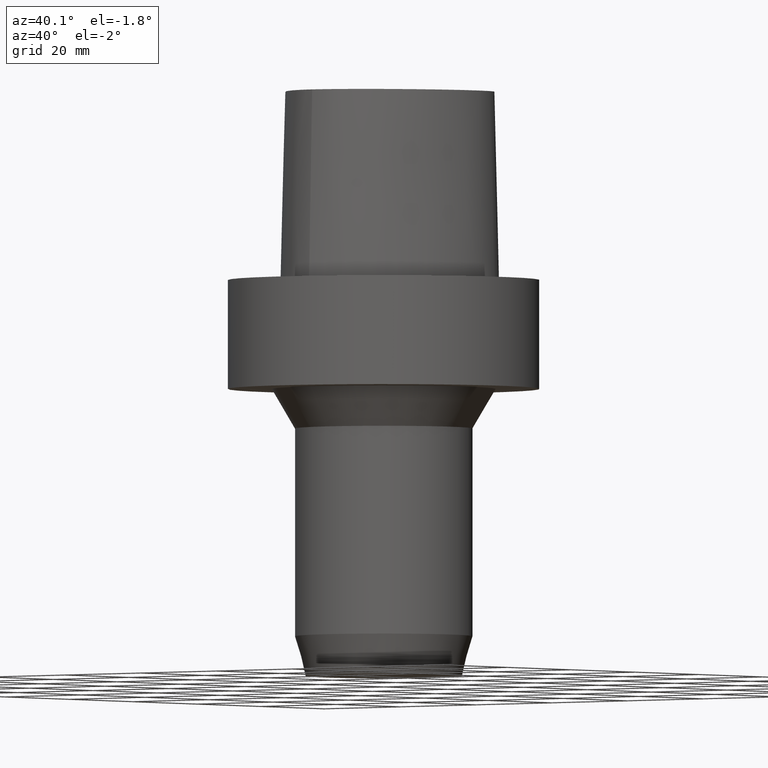
[diagram: clean part render]
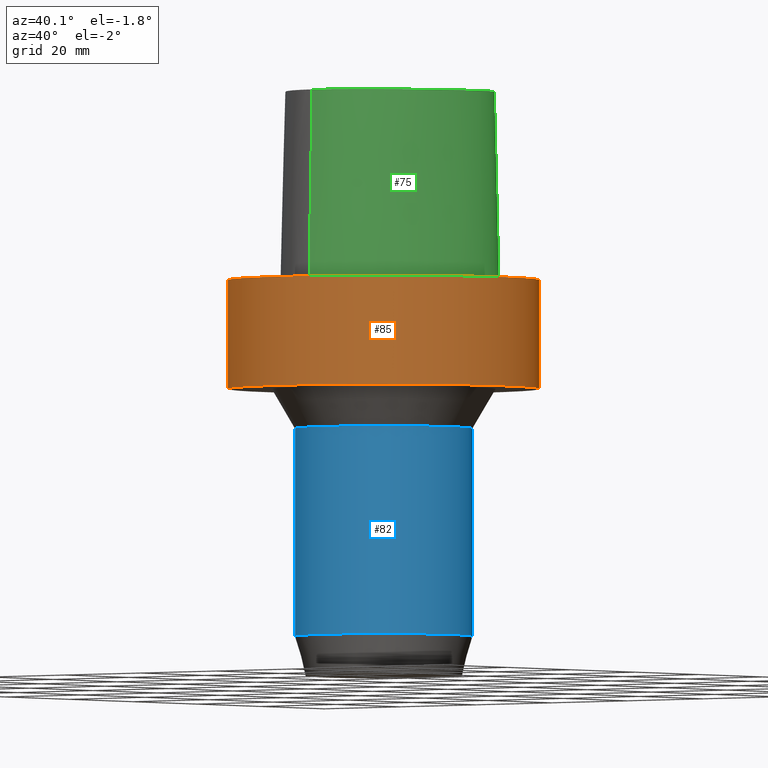
[diagram: same view with three faces highlighted in distinct colors, each labeled with its STEP entity id]
A machine part, auxiliary view with three faces highlighted in distinct colors.
Their STEP definitions:

[orange] entity #85 — the highlighted cylindrical surface (bore or boss wall) has radius 31.4925 mm, axis along (0, 0, -1).
#85=ADVANCED_FACE('',(#112,#113),#114,.T.);
#112=FACE_BOUND('',#278,.T.);
#113=FACE_BOUND('',#279,.T.);
#114=CYLINDRICAL_SURFACE('',#280,31.4925);
#278=EDGE_LOOP('',(#331));
#279=EDGE_LOOP('',(#332));
#280=AXIS2_PLACEMENT_3D('',#333,#334,#335);
#331=ORIENTED_EDGE('',*,*,#344,.F.);
#332=ORIENTED_EDGE('',*,*,#349,.T.);
#333=CARTESIAN_POINT('',(6.73555739531044E-016,1.34711147906209E-015,-11.0));
#334=DIRECTION('',(6.12323399573677E-017,1.22464679914735E-016,-1.0));
#335=DIRECTION('',(-1.23259516440783E-032,1.0,1.22464679914735E-016));
#344=EDGE_CURVE('',#363,#363,#364,.T.);
#349=EDGE_CURVE('',#373,#373,#374,.T.);
#363=VERTEX_POINT('',#454);
#364=CIRCLE('',#455,31.4925);
#373=VERTEX_POINT('',#464);
#374=CIRCLE('',#465,31.4925);
#454=CARTESIAN_POINT('',(-3.88175032151136E-031,31.4925,3.8567189322148E-015));
#455=AXIS2_PLACEMENT_3D('',#472,#473,#474);
#464=CARTESIAN_POINT('',(1.34711147906209E-015,31.4925,-22.0));
#465=AXIS2_PLACEMENT_3D('',#487,#488,#489);
#472=CARTESIAN_POINT('',(0.0,0.0,0.0));
#473=DIRECTION('',(-6.12323399573677E-017,-1.22464679914735E-016,1.0));
#474=DIRECTION('',(-1.23259516440783E-032,1.0,1.22464679914735E-016));
#487=CARTESIAN_POINT('',(1.34711147906209E-015,2.69422295812418E-015,-22.0));
#488=DIRECTION('',(-6.12323399573677E-017,-1.22464679914735E-016,1.0));
#489=DIRECTION('',(-1.23259516440783E-032,1.0,1.22464679914735E-016));

[blue] entity #82 — the highlighted cylindrical surface (bore or boss wall) has radius 18 mm, axis along (0, 0, -1).
#82=ADVANCED_FACE('',(#103,#104),#105,.T.);
#103=FACE_BOUND('',#269,.T.);
#104=FACE_BOUND('',#270,.T.);
#105=CYLINDRICAL_SURFACE('',#271,18.0);
#269=EDGE_LOOP('',(#316));
#270=EDGE_LOOP('',(#317));
#271=AXIS2_PLACEMENT_3D('',#318,#319,#320);
#316=ORIENTED_EDGE('',*,*,#347,.F.);
#317=ORIENTED_EDGE('',*,*,#346,.T.);
#318=CARTESIAN_POINT('',(3.12284933764275E-015,6.24569867528551E-015,-50.9999999970114));
#319=DIRECTION('',(6.12323399573677E-017,1.22464679914735E-016,-1.0));
#320=DIRECTION('',(-1.23259516440783E-032,1.0,1.22464679914735E-016));
#346=EDGE_CURVE('',#367,#367,#368,.T.);
#347=EDGE_CURVE('',#369,#369,#370,.T.);
#367=VERTEX_POINT('',#458);
#368=CIRCLE('',#459,18.0);
#369=VERTEX_POINT('',#460);
#370=CIRCLE('',#461,18.0);
#458=CARTESIAN_POINT('',(4.40872847632497E-015,18.0,-71.9999999901114));
#459=AXIS2_PLACEMENT_3D('',#478,#479,#480);
#460=CARTESIAN_POINT('',(1.83697019896054E-015,18.0,-30.0000000039115));
#461=AXIS2_PLACEMENT_3D('',#481,#482,#483);
#478=CARTESIAN_POINT('',(4.40872847632497E-015,8.81745695264994E-015,-71.9999999901114));
#479=DIRECTION('',(-6.12323399573677E-017,-1.22464679914735E-016,1.0));
#480=DIRECTION('',(-1.23259516440783E-032,1.0,1.22464679914735E-016));
#481=CARTESIAN_POINT('',(1.83697019896054E-015,3.67394039792108E-015,-30.0000000039115));
#482=DIRECTION('',(-6.12323399573677E-017,-1.22464679914735E-016,1.0));
#483=DIRECTION('',(-1.23259516440783E-032,1.0,1.22464679914735E-016));

[green] entity #75 — the highlighted face is a freeform B-spline surface patch.
#75=ADVANCED_FACE('',(#87),#88,.T.);
#87=FACE_OUTER_BOUND('',#115,.T.);
#88=B_SPLINE_SURFACE_WITH_KNOTS('',3,3,((#116,#117,#118,#119),(#120,#121,#122,#123),(#124,#125,#126,#127),(#128,#129,#130,#131),(#132,#133,#134,#135),(#136,#137,#138,#139),(#140,#141,#142,#143),(#144,#145,#146,#147),(#148,#149,#150,#151),(#152,#153,#154,#155),(#156,#157,#158,#159),(#160,#161,#162,#163),(#164,#165,#166,#167),(#168,#169,#170,#171),(#172,#173,#174,#175),(#176,#177,#178,#179),(#180,#181,#182,#183)),.UNSPECIFIED.,.F.,.F.,.F.,(4,1,1,1,1,1,1,1,1,1,1,1,1,1,4),(4,4),(-13.2302678617486,-12.816821991069,-12.4033761203893,-11.9899302497097,-11.57648437903,-11.1630385083504,-10.9563155730106,-10.7495926376707,-10.3361467669911,-9.92270089631145,-9.09580915495216,-8.26891741359287,-7.44202567223358,-7.02857980155394,-6.6151339308743),(-3.8,0.0),.UNSPECIFIED.);
#115=EDGE_LOOP('',(#281,#282,#283,#284));
#116=CARTESIAN_POINT('',(-0.001218367817519,19.7276822012873,38.0));
#117=CARTESIAN_POINT('',(0.014082083248157,20.0439577123075,25.3333333333066));
#118=CARTESIAN_POINT('',(0.029382534313671,20.3602332232908,12.6666666666934));
#119=CARTESIAN_POINT('',(0.044682985379347,20.6765087343109,1.61778115328528E-031));
#120=CARTESIAN_POINT('',(1.37788651195108,19.6609652834875,38.0));
#121=CARTESIAN_POINT('',(1.3931885827258,19.9772407169847,25.3333333333066));
#122=CARTESIAN_POINT('',(1.40849065356095,20.2935162254648,12.6666666666934));
#123=CARTESIAN_POINT('',(1.42379272427753,20.6097915814392,8.62816615085482E-032));
#124=CARTESIAN_POINT('',(4.135446440878,19.5347778787784,38.0));
#125=CARTESIAN_POINT('',(4.16466278851883,19.8511031866125,25.3333333333066));
#126=CARTESIAN_POINT('',(4.1938791526746,20.1674284644204,12.6666666666934));
#127=CARTESIAN_POINT('',(4.2230955003445,20.4837538303966,1.4791141972894E-031));
#128=CARTESIAN_POINT('',(8.213607363795,18.7706026638736,38.0));
#129=CARTESIAN_POINT('',(8.29980745008421,19.0767495109635,25.3333333333066));
#130=CARTESIAN_POINT('',(8.38600751285747,19.3828964329996,12.6666666666934));
#131=CARTESIAN_POINT('',(8.47220762821777,19.6890432607088,9.86076131526265E-032));
#132=CARTESIAN_POINT('',(12.1316338645671,17.3698624840857,38.0));
#133=CARTESIAN_POINT('',(12.2591308270381,17.6610739397708,25.3333333333066));
#134=CARTESIAN_POINT('',(12.3866278083543,17.9522853923553,12.6666666666934));
#135=CARTESIAN_POINT('',(12.5141247708253,18.2434968480404,0.0));
#136=CARTESIAN_POINT('',(15.7706546153679,15.3789501349612,38.0));
#137=CARTESIAN_POINT('',(15.9483905900895,15.6437731794811,25.3333333333066));
#138=CARTESIAN_POINT('',(16.1261265513272,15.9085961736944,12.6666666666934));
#139=CARTESIAN_POINT('',(16.3038624872874,16.1734192182143,1.97215226305253E-031));
#140=CARTESIAN_POINT('',(18.4265894256284,13.0570022172893,38.0));
#141=CARTESIAN_POINT('',(18.6659567517146,13.2725589420689,25.3333333333066));
#142=CARTESIAN_POINT('',(18.9053240921419,13.4881156488541,12.6666666666934));
#143=CARTESIAN_POINT('',(19.1446913988473,13.7036723639434,-1.97215226305253E-031));
#144=CARTESIAN_POINT('',(19.8679958653038,10.6923771981998,38.0));
#145=CARTESIAN_POINT('',(20.1559937048299,10.8287388264873,25.3333333333066));
#146=CARTESIAN_POINT('',(20.4439915656177,10.965100461641,12.6666666666934));
#147=CARTESIAN_POINT('',(20.7319894342149,11.1014620996188,0.0));
#148=CARTESIAN_POINT('',(20.8470867582337,8.07149548576131,38.0));
#149=CARTESIAN_POINT('',(21.1591164072431,8.14132775555392,25.3333333333066));
#150=CARTESIAN_POINT('',(21.4711459821861,8.21116003697855,12.6666666666934));
#151=CARTESIAN_POINT('',(21.7831756505763,8.28099229708081,-1.97215226305253E-031));
#152=CARTESIAN_POINT('',(21.2693244256982,4.61157245650171,38.0));
#153=CARTESIAN_POINT('',(21.5881576801997,4.6105997689982,25.3333333333066));
#154=CARTESIAN_POINT('',(21.9069908544037,4.60962709346857,12.6666666666934));
#155=CARTESIAN_POINT('',(22.2258240701438,4.60865440596506,0.0));
#156=CARTESIAN_POINT('',(20.8071610855575,-0.912828649855193,38.0));
#157=CARTESIAN_POINT('',(21.119311671178,-0.979640884839481,25.3333333333066));
#158=CARTESIAN_POINT('',(21.4314624224461,-1.04645306732201,12.6666666666934));
#159=CARTESIAN_POINT('',(21.7436130080666,-1.11326526354485,0.0));
#160=CARTESIAN_POINT('',(18.6841935581315,-7.54428794252837,38.0));
#161=CARTESIAN_POINT('',(18.9734452551861,-7.6809665891091,25.3333333333066));
#162=CARTESIAN_POINT('',(19.2626970689956,-7.81764505382656,12.6666666666934));
#163=CARTESIAN_POINT('',(19.5519487660502,-7.95432366164584,0.0));
#164=CARTESIAN_POINT('',(14.2175552814,-14.5971504342323,38.0));
#165=CARTESIAN_POINT('',(14.4641757465198,-14.8010930946929,25.3333333333066));
#166=CARTESIAN_POINT('',(14.710796247264,-15.0050359737917,12.6666666666934));
#167=CARTESIAN_POINT('',(14.9574167123838,-15.2089785567293,0.0));
#168=CARTESIAN_POINT('',(9.0844808732933,-19.3179298129689,38.0));
#169=CARTESIAN_POINT('',(9.27912152349017,-19.572866915557,25.3333333333066));
#170=CARTESIAN_POINT('',(9.47376218971294,-19.827804295621,12.6666666666934));
#171=CARTESIAN_POINT('',(9.66840283021945,-20.0827414369705,-9.86076131526265E-032));
#172=CARTESIAN_POINT('',(4.17112919194182,-21.8987568152736,38.0));
#173=CARTESIAN_POINT('',(4.28618163483998,-22.1973837173649,25.3333333333066));
#174=CARTESIAN_POINT('',(4.40123406239433,-22.4960105163661,12.6666666666934));
#175=CARTESIAN_POINT('',(4.51628650521788,-22.7946374572188,-9.86076131526265E-032));
#176=CARTESIAN_POINT('',(1.41533654381097,-22.5120888467812,38.0));
#177=CARTESIAN_POINT('',(1.46311520162011,-22.8284916374445,25.3333333333066));
#178=CARTESIAN_POINT('',(1.51089385942236,-23.144894486341,12.6666666666934));
#179=CARTESIAN_POINT('',(1.55867251738073,-23.4612972770043,-1.23259516440783E-032));
#180=CARTESIAN_POINT('',(0.038736923393866,-22.5191997536361,38.0));
#181=CARTESIAN_POINT('',(0.04035580478973,-22.8358410047159,25.3333333333066));
#182=CARTESIAN_POINT('',(0.041974686185626,-23.1524822558133,12.6666666666934));
#183=CARTESIAN_POINT('',(0.04359356758149,-23.4691235068931,7.78075697532443E-032));
#281=ORIENTED_EDGE('',*,*,#336,.F.);
#282=ORIENTED_EDGE('',*,*,#337,.F.);
#283=ORIENTED_EDGE('',*,*,#338,.F.);
#284=ORIENTED_EDGE('',*,*,#339,.T.);
#336=EDGE_CURVE('',#350,#351,#352,.T.);
#337=EDGE_CURVE('',#353,#350,#354,.T.);
#338=EDGE_CURVE('',#355,#353,#356,.T.);
#339=EDGE_CURVE('',#355,#351,#357,.T.);
#350=VERTEX_POINT('',#375);
#351=VERTEX_POINT('',#376);
#352=B_SPLINE_CURVE_WITH_KNOTS('',3,(#377,#378,#379,#380,#381,#382,#383,#384,#385,#386,#387,#388,#389,#390,#391,#392,#393),.UNSPECIFIED.,.F.,.F.,(4,1,1,1,1,1,1,1,1,1,1,1,1,1,4),(-13.2302678617486,-12.816821991069,-12.4033761203893,-11.9899302497097,-11.57648437903,-11.1630385083504,-10.9563155730106,-10.7495926376707,-10.3361467669911,-9.92270089631145,-9.09580915495216,-8.26891741359287,-7.44202567223358,-7.02857980155394,-6.6151339308743),.UNSPECIFIED.);
#353=VERTEX_POINT('',#394);
#354=LINE('',#395,#396);
#355=VERTEX_POINT('',#397);
#356=B_SPLINE_CURVE_WITH_KNOTS('',3,(#398,#399,#400,#401,#402,#403,#404,#405,#406,#407,#408,#409,#410,#411,#412,#413),.UNSPECIFIED.,.F.,.F.,(4,1,1,1,1,1,1,1,1,1,1,1,1,4),(6.61513393087476,6.99917207152274,7.48193246986995,7.96289324787093,8.45540287038584,9.10291653679981,9.67129810936083,10.1618749681153,10.6358867802489,11.1080734988593,11.6043706019633,12.09451993853,12.6985979284494,13.2302678617486),.UNSPECIFIED.);
#357=LINE('',#414,#415);
#375=CARTESIAN_POINT('',(0.044682985379347,20.6765087343109,1.61778115328528E-031));
#376=CARTESIAN_POINT('',(0.04359356758149,-23.4691235068931,7.78075697532443E-032));
#377=CARTESIAN_POINT('',(0.044682985379347,20.6765087343109,1.61778115328528E-031));
#378=CARTESIAN_POINT('',(1.42379272427753,20.6097915814392,8.62816615085482E-032));
#379=CARTESIAN_POINT('',(4.2230955003445,20.4837538303966,1.4791141972894E-031));
#380=CARTESIAN_POINT('',(8.47220762821777,19.6890432607088,9.86076131526265E-032));
#381=CARTESIAN_POINT('',(12.5141247708253,18.2434968480404,0.0));
#382=CARTESIAN_POINT('',(16.3038624872874,16.1734192182143,1.97215226305253E-031));
#383=CARTESIAN_POINT('',(19.1446913988473,13.7036723639434,-1.97215226305253E-031));
#384=CARTESIAN_POINT('',(20.7319894342149,11.1014620996188,0.0));
#385=CARTESIAN_POINT('',(21.7831756505763,8.28099229708081,-1.97215226305253E-031));
#386=CARTESIAN_POINT('',(22.2258240701438,4.60865440596506,0.0));
#387=CARTESIAN_POINT('',(21.7436130080666,-1.11326526354485,0.0));
#388=CARTESIAN_POINT('',(19.5519487660502,-7.95432366164584,0.0));
#389=CARTESIAN_POINT('',(14.9574167123838,-15.2089785567293,0.0));
#390=CARTESIAN_POINT('',(9.66840283021945,-20.0827414369705,-9.86076131526265E-032));
#391=CARTESIAN_POINT('',(4.51628650521788,-22.7946374572188,-9.86076131526265E-032));
#392=CARTESIAN_POINT('',(1.55867251738073,-23.4612972770043,-1.23259516440783E-032));
#393=CARTESIAN_POINT('',(0.04359356758149,-23.4691235068931,7.78075697532443E-032));
#394=CARTESIAN_POINT('',(-0.001218547003662,19.7276821925089,38.0));
#395=CARTESIAN_POINT('',(-0.001218547003662,19.7276821925089,38.0));
#396=VECTOR('',#466,38.0118715503078);
#397=CARTESIAN_POINT('',(0.038736923393866,-22.5191997536361,38.0));
#398=CARTESIAN_POINT('',(0.038736923394311,-22.519199753636,38.0));
#399=CARTESIAN_POINT('',(1.31742058183662,-22.512662269405,38.0));
#400=CARTESIAN_POINT('',(4.2093773447498,-21.9116226439989,38.0));
#401=CARTESIAN_POINT('',(8.20895504542113,-19.7798683845067,38.0));
#402=CARTESIAN_POINT('',(11.9784633234593,-16.681663904162,38.0));
#403=CARTESIAN_POINT('',(15.5308821579362,-12.5807487594113,38.0));
#404=CARTESIAN_POINT('',(18.4566248438667,-7.64932246015528,38.0));
#405=CARTESIAN_POINT('',(20.4036090752029,-2.27012499825289,38.0));
#406=CARTESIAN_POINT('',(21.2357187429189,2.79891401173156,38.0));
#407=CARTESIAN_POINT('',(21.0811206267748,7.62543090736657,38.0));
#408=CARTESIAN_POINT('',(19.3383577336563,12.2772250726194,38.0));
#409=CARTESIAN_POINT('',(15.5796322014404,15.5799672120682,38.0));
#410=CARTESIAN_POINT('',(10.8392956074438,17.9834601687347,38.0));
#411=CARTESIAN_POINT('',(5.56068045850571,19.4586143858472,38.0));
#412=CARTESIAN_POINT('',(1.77223893711014,19.6418877095654,38.0));
#413=CARTESIAN_POINT('',(-0.001218367817519,19.7276822012873,38.0));
#414=CARTESIAN_POINT('',(0.038736923393866,-22.5191997536361,38.0));
#415=VECTOR('',#467,38.0118715498723);
#466=DIRECTION('',(0.001207557810519,0.024961321374199,-0.999687688350411));
#467=DIRECTION('',(0.000127766510556,-0.024990186342461,-0.999687688361864));